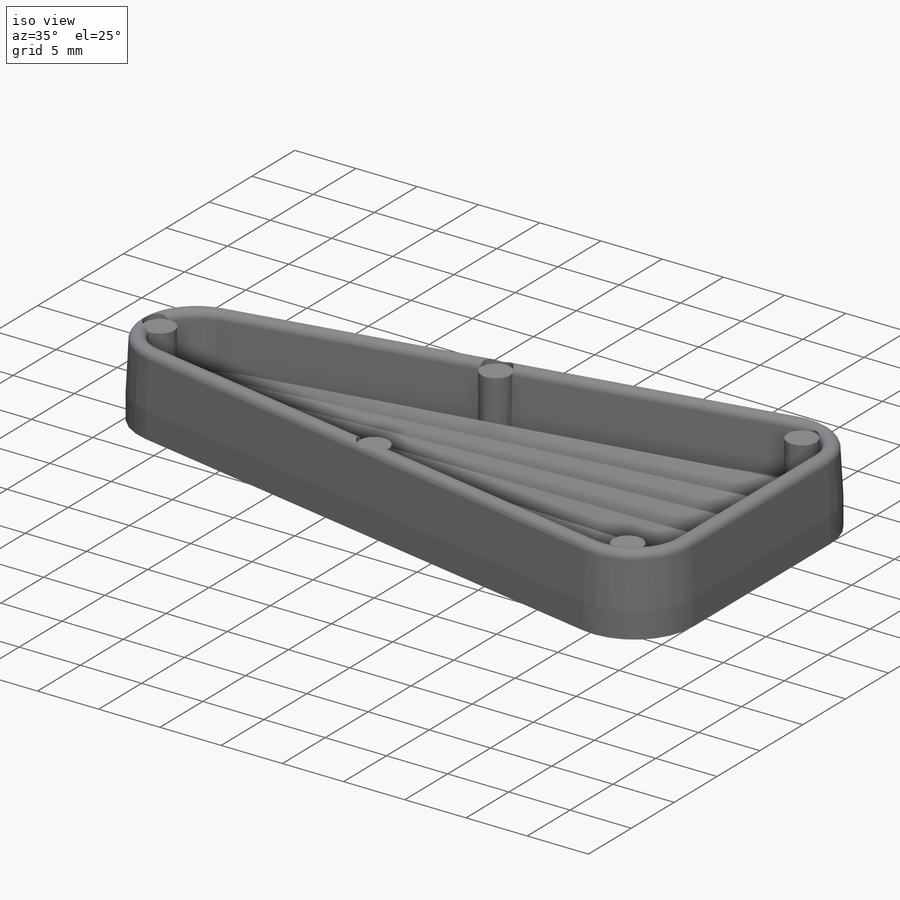
[diagram: iso view]
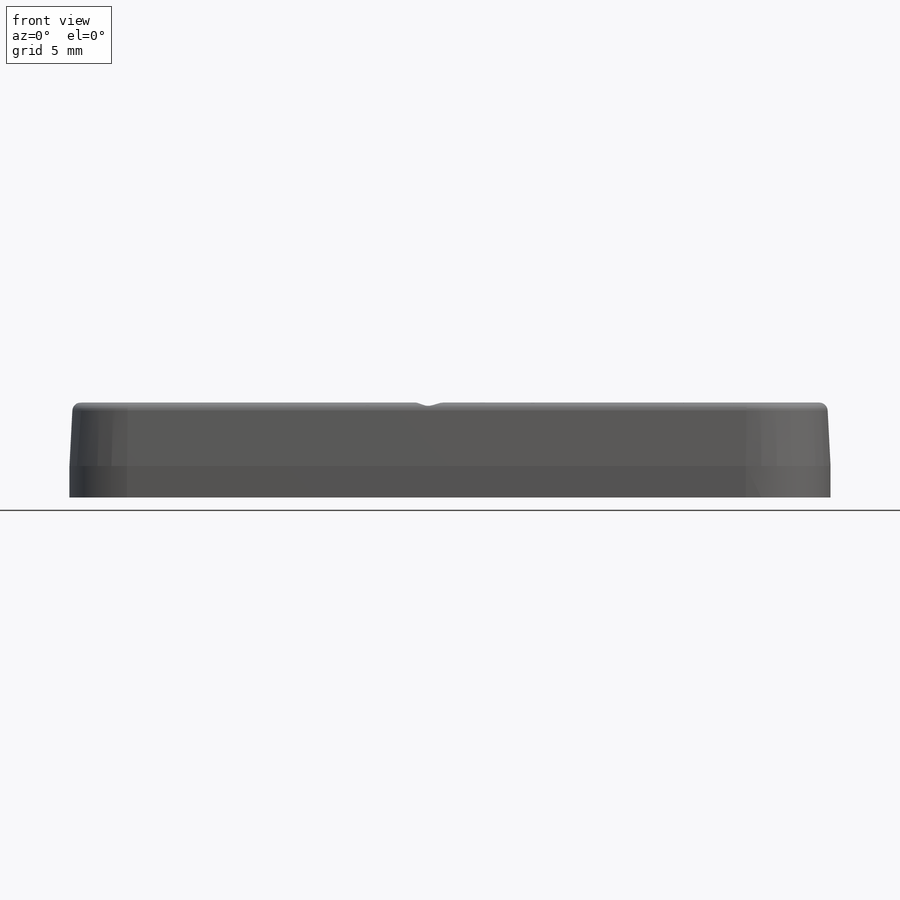
[diagram: front view]
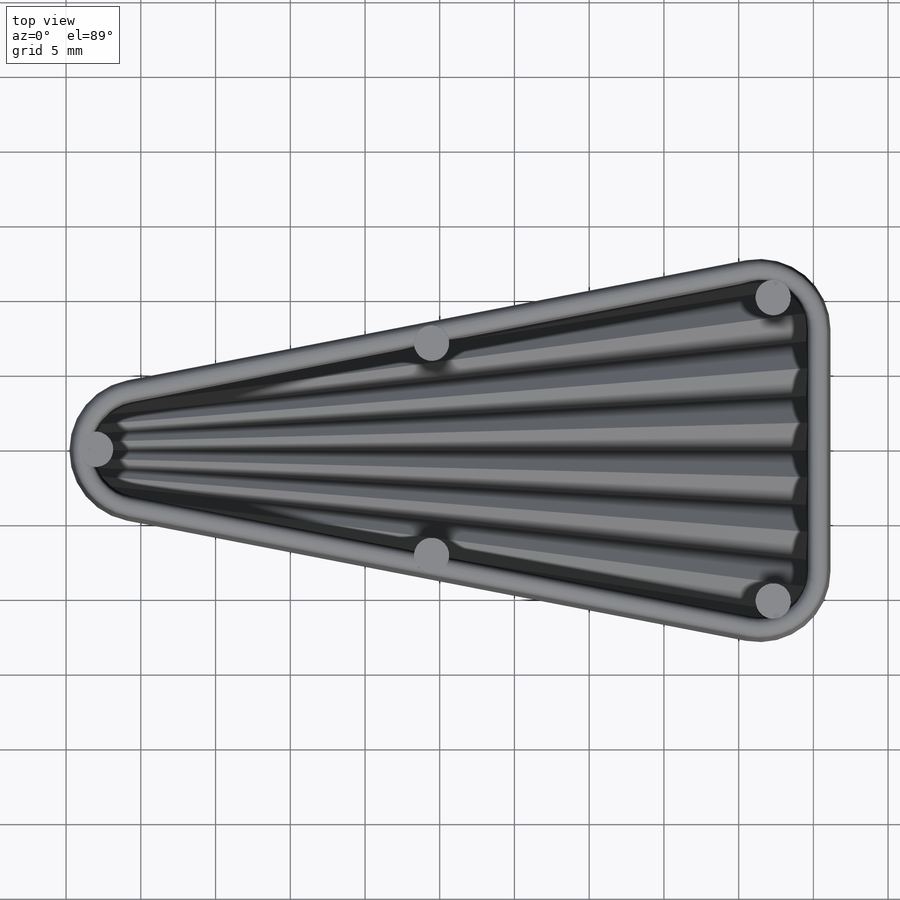
[diagram: top view]
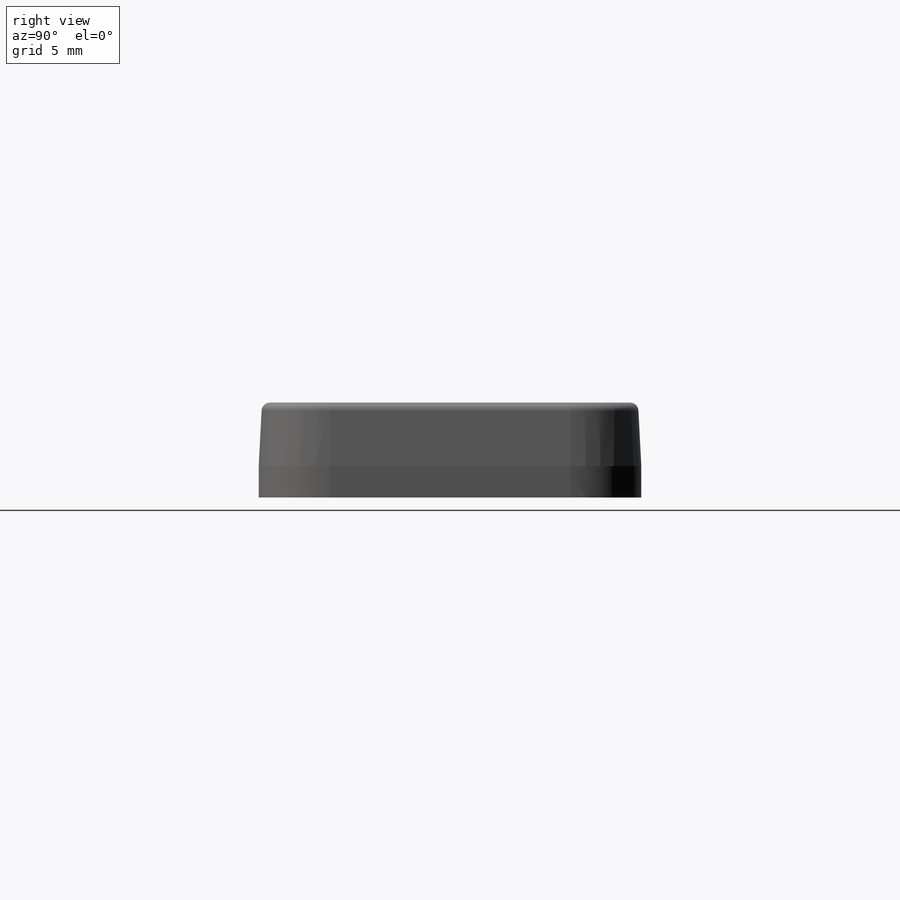
[diagram: right view]
SOLIDWORKS PART (.sldprt)
format: sldprt  version: not decoded by parser v0  size: 481,792 bytes
history: native  units: mm
features: sketch x11, cut_extrude x5, plane x3, extrude x2, material x1, mirror x1, sweep x1, fillet x1 (+12 scaffold rows collapsed)
feature tree (37):
  scaffold x12  (default folders/planes/origin — collapsed)
  material  "Material <not specified>"
  sketch  "Sketch1"  dims[c1.D1=4.7625mm c1.D2=4.7625mm c1.D3=4.7625mm c1.D4=4.7625mm c2.D3=50.927mm c2.D4=25.6032mm c2.D5=~148.21108mm c3.D5=3.0deg c3.D6=~148.21108mm c4.D6=6.0deg c4.D7=~103.485836mm c5.D7=9.0deg]
  extrude  "Boss-Extrude1"  Depth=3.4544mm
  sketch  "Sketch2"  dims[c1.D1=~1.868813mm c2.D1=90.0deg c2.D2=3.81mm]
  cut_extrude  "Cut-Extrude1"  [1 undecoded]
  plane  "Plane1"
  sketch  "Sketch3"  dims[c1.D1=~2.027156mm c2.D1=90.0deg c2.D2=3.81mm]
  cut_extrude  "Cut-Extrude2"  [1 undecoded]
  plane  "Plane2"
  sketch  "Sketch4"  dims[c1.D1=~2.131352mm c2.D1=90.0deg c2.D2=3.81mm]
  cut_extrude  "Cut-Extrude3"  [1 undecoded]
  plane  "Plane3"
  sketch  "Sketch5"  dims[c1.D1=~2.622467mm c2.D1=90.0deg c2.D2=3.81mm]
  cut_extrude  "Cut-Extrude4"  [1 undecoded]
  mirror  "Mirror1"
  sketch  "Sketch6"  dims[c1.D1=0.0mm c2.D1=6.35mm c2.D5=1.7272mm c2.D6=2.54mm c2.D7=5.0mm]
  sketch  "Sketch7"  dims[c1.D1=~4.053018mm c2.D1=3.0deg c2.D2=2.1082mm]
  sketch  "Sketch8"
  sweep  "Cut-Sweep1"
  fillet  "Fillet1"  Radius=0.5588mm
  sketch  "Sketch9"  dims[c1.D1=2.3622mm c1.D2=2.3622mm c1.D3=2.3622mm c1.D4=2.3622mm c1.D5=2.3622mm c1.D6=2.3622mm c2.D2=~21.96961mm c2.D3=10.16mm c2.D4=67.31mm c2.D5=44.45mm c2.D6=7.112mm]
  extrude  "Boss-Extrude2"  Depth=5.08mm
  sketch  "Sketch10"  dims[D1=0.0mm D2=0.0mm]
  cut_extrude  "Cut-Extrude5"  Depth=0.381mm
  sketch  "Sketch11 - Offset .005"  dims[D1=0.127mm]
decode coverage: 14 of 21 modeling features carry decoded parameters
note: ~ marks probable driven/reference dimensions
note: 4 parameter values undecoded
summary: no parameter record found for 4 features
note: suppression state not decoded; provenance and decode notes live in map.json
